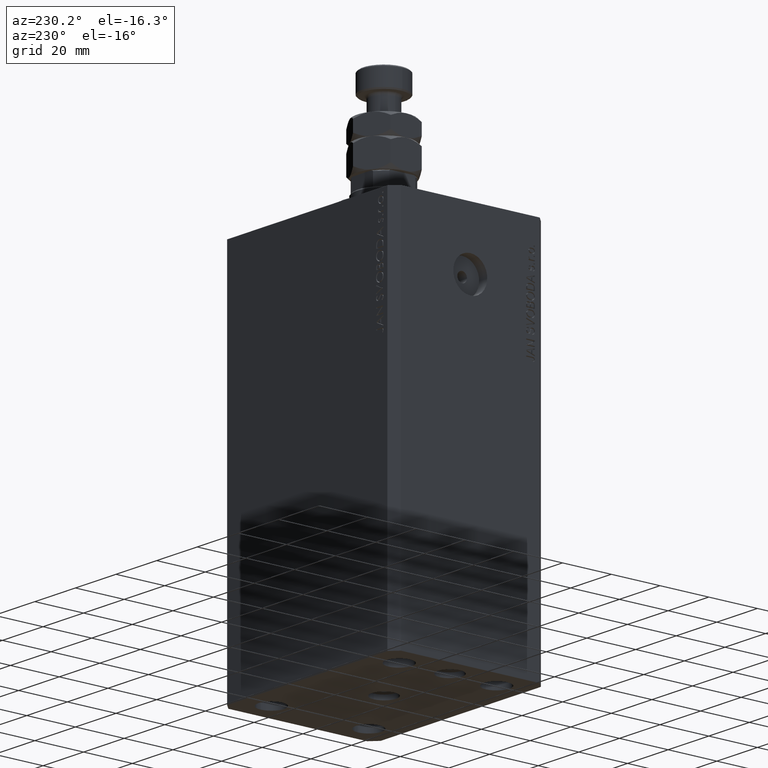
[diagram: clean part render]
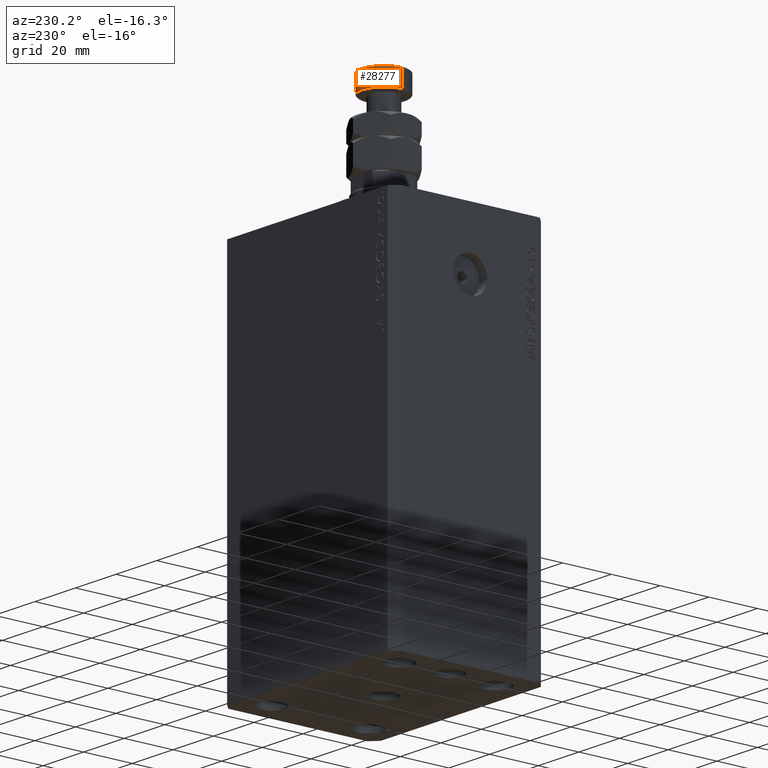
[diagram: same view with one face highlighted and labeled with its STEP entity id]
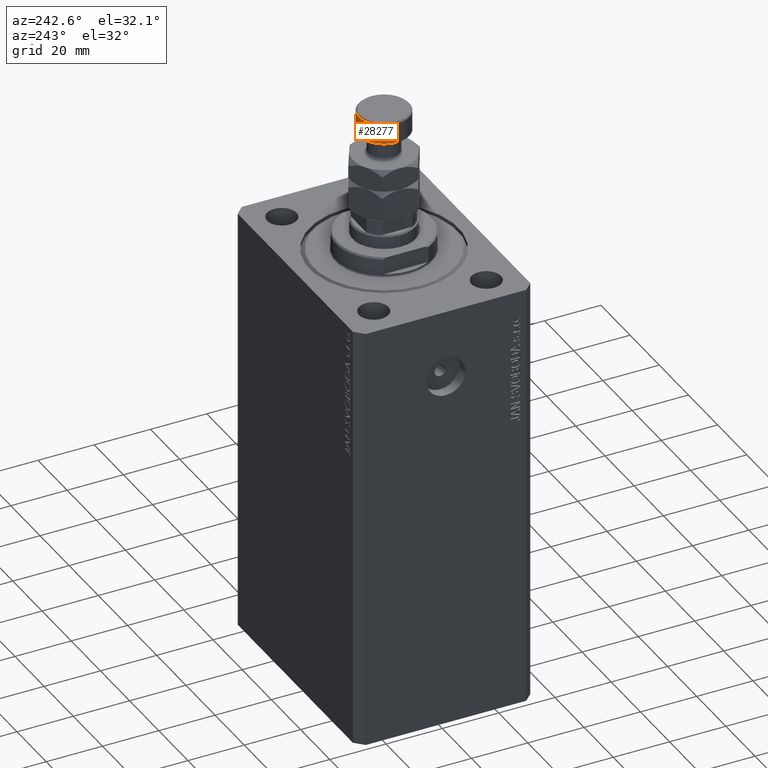
[diagram: same view with one face highlighted and labeled with its STEP entity id]
A machine part, auxiliary view. The second image highlights one B-rep face of the part: STEP entity #28277.
A second angle (auxiliary view) of the same face is appended — the face is thin or edge-on in the first view.
In plain terms, the highlighted cylindrical surface (edge-blend (fillet) strip) has radius 9 mm, axis along (-0, -0, -1).
Its self-contained STEP definition (entity closure, byte-faithful):
#1649 = EDGE_LOOP ( 'NONE', ( #5610, #34394, #37510, #44746 ) ) ;
#2211 = EDGE_CURVE ( 'NONE', #41364, #34442, #2526, .T. ) ;
#2526 = CIRCLE ( 'NONE', #39119, 9.000000000000000000 ) ;
#3628 = VERTEX_POINT ( 'NONE', #17730 ) ;
#5610 = ORIENTED_EDGE ( 'NONE', *, *, #2211, .T. ) ;
#10087 = DIRECTION ( 'NONE',  ( -0.000000000000000000, -0.000000000000000000, -1.000000000000000000 ) ) ;
#13596 = FACE_OUTER_BOUND ( 'NONE', #1649, .T. ) ;
#13703 = DIRECTION ( 'NONE',  ( -0.000000000000000000, -0.000000000000000000, -1.000000000000000000 ) ) ;
#15026 = VECTOR ( 'NONE', #30583, 1000.000000000000000 ) ;
#15461 = CARTESIAN_POINT ( 'NONE',  ( -9.000000000000000000, 0.000000000000000000, 34.49999999999999289 ) ) ;
#16403 = DIRECTION ( 'NONE',  ( 1.000000000000000000, 0.000000000000000000, 0.000000000000000000 ) ) ;
#17190 = DIRECTION ( 'NONE',  ( 1.000000000000000000, 0.000000000000000000, 0.000000000000000000 ) ) ;
#17730 = CARTESIAN_POINT ( 'NONE',  ( 9.000000000000000000, 1.102182119232617714E-15, 27.50000000000000000 ) ) ;
#19778 = CARTESIAN_POINT ( 'NONE',  ( 0.000000000000000000, 0.000000000000000000, 27.50000000000000000 ) ) ;
#19826 = EDGE_CURVE ( 'NONE', #34442, #3628, #28432, .T. ) ;
#23331 = AXIS2_PLACEMENT_3D ( 'NONE', #45630, #10087, #38835 ) ;
#25317 = EDGE_CURVE ( 'NONE', #41364, #40916, #30357, .T. ) ;
#28277 = ADVANCED_FACE ( 'NONE', ( #13596 ), #39308, .T. ) ;
#28432 = LINE ( 'NONE', #35207, #35789 ) ;
#30357 = LINE ( 'NONE', #40877, #15026 ) ;
#30583 = DIRECTION ( 'NONE',  ( -0.000000000000000000, -0.000000000000000000, -1.000000000000000000 ) ) ;
#31119 = DIRECTION ( 'NONE',  ( 0.000000000000000000, 0.000000000000000000, -1.000000000000000000 ) ) ;
#32904 = EDGE_CURVE ( 'NONE', #3628, #40916, #36874, .T. ) ;
#34394 = ORIENTED_EDGE ( 'NONE', *, *, #19826, .T. ) ;
#34442 = VERTEX_POINT ( 'NONE', #41649 ) ;
#35207 = CARTESIAN_POINT ( 'NONE',  ( 9.000000000000000000, 1.102182119232617714E-15, 35.00000000000000000 ) ) ;
#35789 = VECTOR ( 'NONE', #13703, 1000.000000000000000 ) ;
#35867 = CARTESIAN_POINT ( 'NONE',  ( -9.000000000000000000, 0.000000000000000000, 27.50000000000000000 ) ) ;
#36874 = CIRCLE ( 'NONE', #44349, 9.000000000000000000 ) ;
#37510 = ORIENTED_EDGE ( 'NONE', *, *, #32904, .T. ) ;
#37770 = DIRECTION ( 'NONE',  ( -0.000000000000000000, -0.000000000000000000, 1.000000000000000000 ) ) ;
#38835 = DIRECTION ( 'NONE',  ( -1.000000000000000000, 0.000000000000000000, 0.000000000000000000 ) ) ;
#39119 = AXIS2_PLACEMENT_3D ( 'NONE', #41867, #31119, #16403 ) ;
#39308 = CYLINDRICAL_SURFACE ( 'NONE', #23331, 9.000000000000000000 ) ;
#40877 = CARTESIAN_POINT ( 'NONE',  ( -9.000000000000000000, 0.000000000000000000, 35.00000000000000000 ) ) ;
#40916 = VERTEX_POINT ( 'NONE', #35867 ) ;
#41364 = VERTEX_POINT ( 'NONE', #15461 ) ;
#41649 = CARTESIAN_POINT ( 'NONE',  ( 9.000000000000000000, 1.102182119232617714E-15, 34.49999999999999289 ) ) ;
#41867 = CARTESIAN_POINT ( 'NONE',  ( 0.000000000000000000, 0.000000000000000000, 34.49999999999999289 ) ) ;
#44349 = AXIS2_PLACEMENT_3D ( 'NONE', #19778, #37770, #17190 ) ;
#44746 = ORIENTED_EDGE ( 'NONE', *, *, #25317, .F. ) ;
#45630 = CARTESIAN_POINT ( 'NONE',  ( 0.000000000000000000, 0.000000000000000000, 35.00000000000000000 ) ) ;